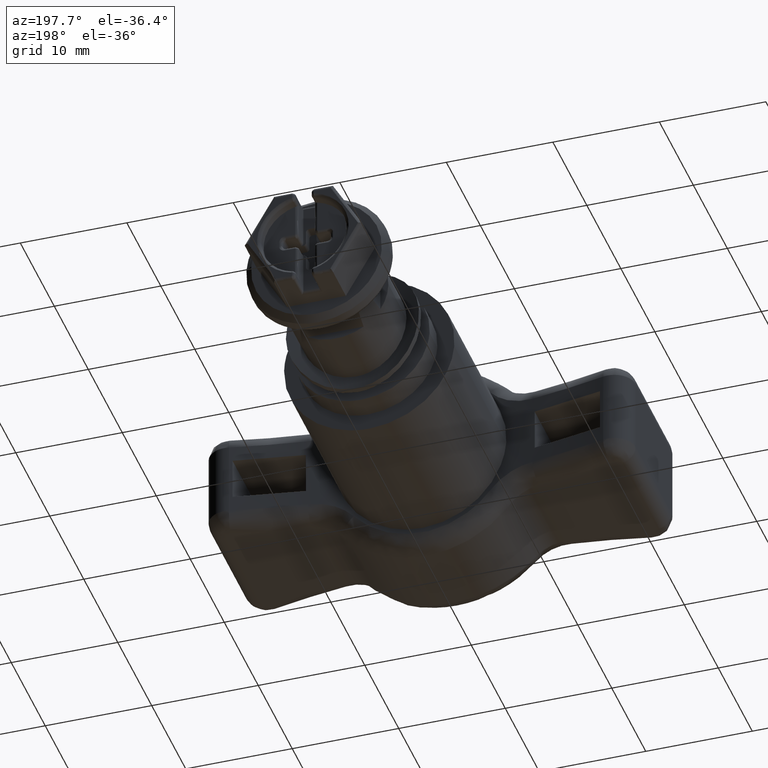
[diagram: clean part render]
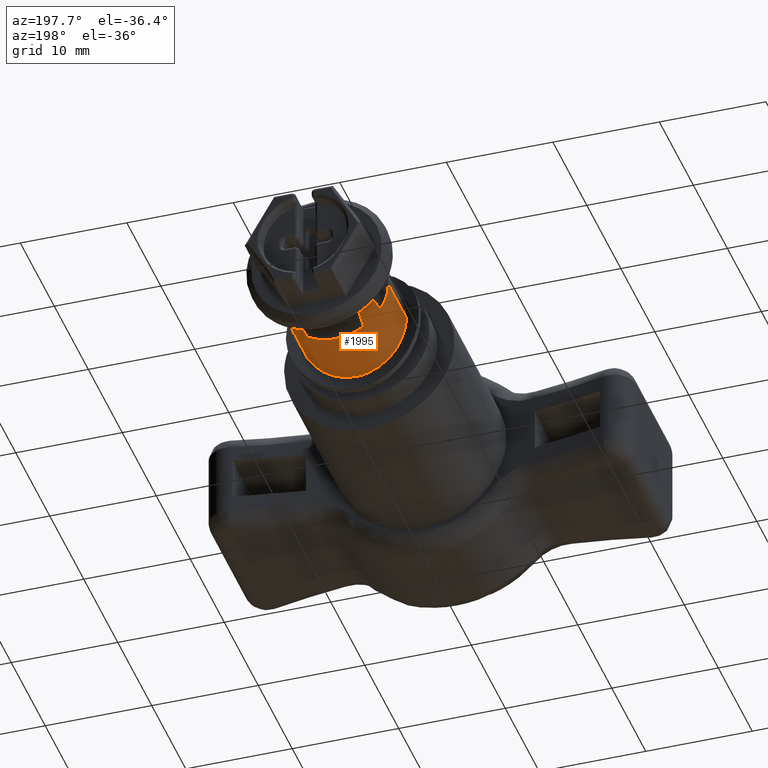
[diagram: same view with one face highlighted and labeled with its STEP entity id]
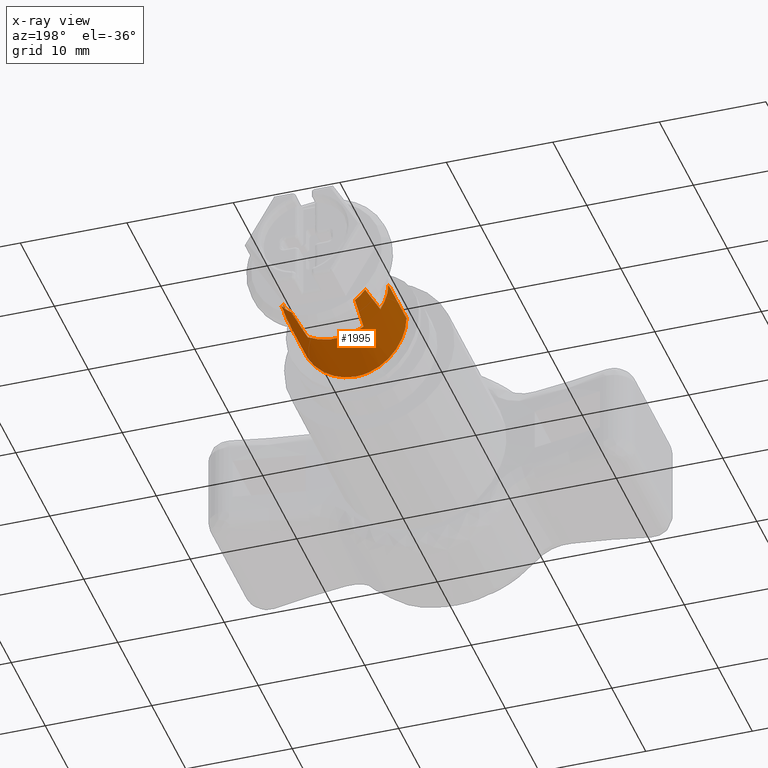
[diagram: x-ray of the same camera — body ghosted, the highlighted face saturated]
A machine part, auxiliary view. The second image highlights one B-rep face of the part: STEP entity #1995.
The next image is the same camera in x-ray: the body ghosted, the highlighted face saturated — about 0% of this face is hidden behind the body in this view.
In plain terms, the highlighted face is a freeform B-spline surface patch.
Its self-contained STEP definition (entity closure, byte-faithful):
#1743=CARTESIAN_POINT('',(4.949811754271095,3.657501100709614,0.043196352768667));
#1744=CARTESIAN_POINT('',(4.993008107039762,3.657501100709614,-4.906615401502429));
#1745=CARTESIAN_POINT('',(0.043196352768667,3.657501100709614,-4.949811754271095));
#1746=CARTESIAN_POINT('',(-4.906615401502429,3.657501100709614,-4.993008107039762));
#1747=CARTESIAN_POINT('',(-4.949811754271095,3.657501100709614,-0.043196352768667));
#1748=CARTESIAN_POINT('',(4.949811754271095,13.848563134596731,0.043196352768667));
#1749=CARTESIAN_POINT('',(4.993008107039762,13.848563134596731,-4.906615401502429));
#1750=CARTESIAN_POINT('',(0.043196352768667,13.848563134596731,-4.949811754271095));
#1751=CARTESIAN_POINT('',(-4.906615401502429,13.848563134596731,-4.993008107039762));
#1752=CARTESIAN_POINT('',(-4.949811754271095,13.848563134596731,-0.043196352768667));
#1760=(BOUNDED_SURFACE()B_SPLINE_SURFACE(2,1,((#1743,#1748),(#1744,#1749),(#1745,#1750),(#1746,#1751),(#1747,#1752)),.UNSPECIFIED.,.F.,.F.,.U.)B_SPLINE_SURFACE_WITH_KNOTS((3,2,3),(2,2),(0.0,8.201428924534259,16.402857849068521),(0.0,10.191062033887119),.UNSPECIFIED.)GEOMETRIC_REPRESENTATION_ITEM()RATIONAL_B_SPLINE_SURFACE(((1.0,1.0),(0.707106781186548,0.707106781186548),(1.0,1.0),(0.707106781186548,0.707106781186548),(1.0,1.0)))REPRESENTATION_ITEM('')SURFACE());
#1761=CARTESIAN_POINT('',(4.949811752622369,9.900000470229095,0.043196541692497));
#1762=VERTEX_POINT('',#1761);
#1763=CARTESIAN_POINT('',(4.200000199489295,9.900000470224770,-2.619637503912030));
#1764=VERTEX_POINT('',#1763);
#1765=CARTESIAN_POINT('',(4.949811752622369,9.900000470229095,0.043196541692497));
#1766=CARTESIAN_POINT('',(4.962383127710958,9.900000470224770,-1.397327758446695));
#1767=CARTESIAN_POINT('',(4.200000199489295,9.900000470224770,-2.619637503912030));
#1775=(BOUNDED_CURVE()B_SPLINE_CURVE(2,(#1765,#1766,#1767),.UNSPECIFIED.,.F.,.U.)B_SPLINE_CURVE_WITH_KNOTS((3,3),(0.492379668734911,1.0),.UNSPECIFIED.)CURVE()GEOMETRIC_REPRESENTATION_ITEM()RATIONAL_B_SPLINE_CURVE((0.924260021045028,0.923087828596199,1.0))REPRESENTATION_ITEM(''));
#1776=EDGE_CURVE('',#1762,#1764,#1775,.T.);
#1777=ORIENTED_EDGE('',*,*,#1776,.F.);
#1778=CARTESIAN_POINT('',(4.949812679903789,4.561491550848831,0.043196360768620));
#1779=VERTEX_POINT('',#1778);
#1780=CARTESIAN_POINT('',(4.949812679903789,4.561491550848831,0.043196360768620));
#1781=CARTESIAN_POINT('',(4.949811752622369,9.900000470229095,0.043196541692497));
#1782=QUASI_UNIFORM_CURVE('',1,(#1780,#1781),.UNSPECIFIED.,.F.,.U.);
#1783=EDGE_CURVE('',#1779,#1762,#1782,.T.);
#1784=ORIENTED_EDGE('',*,*,#1783,.F.);
#1785=CARTESIAN_POINT('',(-0.002106899889249,3.900001191639709,-4.949999952943595));
#1786=VERTEX_POINT('',#1785);
#1787=CARTESIAN_POINT('',(-0.002106899889249,3.900001191639709,-4.949999952943595));
#1788=CARTESIAN_POINT('',(0.159836791459824,3.899983106584857,-4.950068716000938));
#1789=CARTESIAN_POINT('',(0.321549631759985,3.902051623462572,-4.942209517530054));
#1790=CARTESIAN_POINT('',(0.644511325206006,3.910330217092251,-4.910543170824466));
#1791=CARTESIAN_POINT('',(0.805934232216225,3.916549369533924,-4.886702687357722));
#1792=CARTESIAN_POINT('',(1.288413030167790,3.941326866971410,-4.790621822478156));
#1793=CARTESIAN_POINT('',(1.598029711204480,3.965468704008409,-4.696067131034080));
#1794=CARTESIAN_POINT('',(2.045384671220852,4.010701004606911,-4.510539286683148));
#1795=CARTESIAN_POINT('',(2.191636736552876,4.027284976672309,-4.441357717144506));
#1796=CARTESIAN_POINT('',(2.406650809253257,4.054125816393944,-4.326331138180716));
#1797=CARTESIAN_POINT('',(2.477761834053888,4.063424411115696,-4.286001193504472));
#1798=CARTESIAN_POINT('',(2.617154362049209,4.082436836425926,-4.202334230189529));
#1799=CARTESIAN_POINT('',(2.685548714871608,4.092162631897287,-4.158948499518180));
#1800=CARTESIAN_POINT('',(3.021154904683739,4.141702311818814,-3.934397091448967));
#1801=CARTESIAN_POINT('',(3.269458772680993,4.184248404154034,-3.730594701390641));
#1802=CARTESIAN_POINT('',(3.554958930073130,4.238162947239802,-3.445472613575584));
#1803=CARTESIAN_POINT('',(3.610803217458734,4.248982121677257,-3.386915248266799));
#1804=CARTESIAN_POINT('',(3.719940678614736,4.270616777126216,-3.266670494821880));
#1805=CARTESIAN_POINT('',(3.773203098089304,4.281427676224735,-3.204996050001018));
#1806=CARTESIAN_POINT('',(3.927443559459737,4.313387412561175,-3.017271168494997));
#1807=CARTESIAN_POINT('',(4.023493759121891,4.334181571350769,-2.887878379027006));
#1808=CARTESIAN_POINT('',(4.291833793609067,4.394177039466904,-2.487173084482560));
#1809=CARTESIAN_POINT('',(4.444518456821213,4.431008888554121,-2.203462528696388));
#1810=CARTESIAN_POINT('',(4.601270004794536,4.470179657923537,-1.826874992819635));
#1811=CARTESIAN_POINT('',(4.630837082335916,4.477654027212187,-1.750562144057597));
#1812=CARTESIAN_POINT('',(4.685858455508082,4.491686542337921,-1.597451231896719));
#1813=CARTESIAN_POINT('',(4.711400828293182,4.498266638445246,-1.520447221217967));
#1814=CARTESIAN_POINT('',(4.782207617410449,4.516642026721550,-1.288104572830751));
#1815=CARTESIAN_POINT('',(4.861123251954687,4.537502148295919,-0.974771942442676));
#1816=CARTESIAN_POINT('',(4.909258555573484,4.550496239445836,-0.654365957748348));
#1817=CARTESIAN_POINT('',(4.933551490972372,4.557072379204759,-0.411339306007528));
#1818=CARTESIAN_POINT('',(4.939677455861680,4.558736158329343,-0.329875953300858));
#1819=CARTESIAN_POINT('',(4.947895442374732,4.560969672013772,-0.166018685218303));
#1820=CARTESIAN_POINT('',(4.949961121270930,4.561532215063449,-0.083958363934988));
#1821=CARTESIAN_POINT('',(4.950006858002320,4.561544662334078,0.012848806976919));
#1822=CARTESIAN_POINT('',(4.949944811716124,4.561527586066537,0.028027138857545));
#1823=CARTESIAN_POINT('',(4.949812679903789,4.561491550848831,0.043196360768620));
#1824=B_SPLINE_CURVE_WITH_KNOTS('',3,(#1787,#1788,#1789,#1790,#1791,#1792,#1793,#1794,#1795,#1796,#1797,#1798,#1799,#1800,#1801,#1802,#1803,#1804,#1805,#1806,#1807,#1808,#1809,#1810,#1811,#1812,#1813,#1814,#1815,#1816,#1817,#1818,#1819,#1820,#1821,#1822,#1823),.UNSPECIFIED.,.F.,.U.,(4,2,2,2,2,2,2,2,2,2,2,2,2,2,1,2,2,2,4),(0.500000000000001,0.515625000000001,0.531250000000001,0.562500000000001,0.578125000000001,0.585937500000001,0.593750000000000,0.625000000000000,0.632812500000000,0.640625000000000,0.656250000000000,0.687500000000000,0.695312500000000,0.703125000000000,0.718750000000000,0.734375000000000,0.742187500000000,0.750000000000000,0.751453716007712),.UNSPECIFIED.);
#1825=EDGE_CURVE('',#1786,#1779,#1824,.T.);
#1826=ORIENTED_EDGE('',*,*,#1825,.F.);
#1827=CARTESIAN_POINT('',(-4.949811995711610,4.561488388558884,-0.043195408050579));
#1828=VERTEX_POINT('',#1827);
#1829=CARTESIAN_POINT('',(-4.949811995711610,4.561488388558884,-0.043195408050579));
#1830=CARTESIAN_POINT('',(-4.948533073386311,4.561139646061286,-0.190052144919655));
#1831=CARTESIAN_POINT('',(-4.940722172687361,4.559011101286549,-0.337383272692361));
#1832=CARTESIAN_POINT('',(-4.910069987081322,4.550712326686144,-0.648587773702414));
#1833=CARTESIAN_POINT('',(-4.885985883354389,4.544209723189174,-0.809895723979469));
#1834=CARTESIAN_POINT('',(-4.790776378708419,4.518835786588152,-1.286902373887887));
#1835=CARTESIAN_POINT('',(-4.696871746714621,4.494083741062116,-1.596172407617766));
#1836=CARTESIAN_POINT('',(-4.541026552129538,4.455119020419421,-1.971850757990086));
#1837=CARTESIAN_POINT('',(-4.507816042733376,4.446900725118884,-2.046638809909340));
#1838=CARTESIAN_POINT('',(-4.438035067181209,4.429855610635938,-2.193850656880567));
#1839=CARTESIAN_POINT('',(-4.401472335712231,4.421030099250448,-2.266293504033980));
#1840=CARTESIAN_POINT('',(-4.286864857125941,4.393761064413623,-2.480215155713165));
#1841=CARTESIAN_POINT('',(-4.203913189976734,4.374525792612164,-2.618295450468087));
#1842=CARTESIAN_POINT('',(-4.025121190245118,4.334535524115902,-2.885612017972389));
#1843=CARTESIAN_POINT('',(-3.929280752750573,4.313779584061865,-3.014848081376595));
#1844=CARTESIAN_POINT('',(-3.775709004250434,4.281938706065553,-3.202036315671855));
#1845=CARTESIAN_POINT('',(-3.722880167007864,4.271207235750972,-3.263319359792655));
#1846=CARTESIAN_POINT('',(-3.613883055772584,4.249582034992030,-3.383628128004226));
#1847=CARTESIAN_POINT('',(-3.557690977327860,4.238685676482548,-3.442658152142073));
#1848=CARTESIAN_POINT('',(-3.271381191078361,4.184577276391516,-3.729008922381121));
#1849=CARTESIAN_POINT('',(-3.023072122803522,4.142027689213460,-3.932833645451834));
#1850=CARTESIAN_POINT('',(-2.621913096591788,4.082746673519988,-4.201664497785338));
#1851=CARTESIAN_POINT('',(-2.483375878543342,4.063740964288710,-4.285077064139112));
#1852=CARTESIAN_POINT('',(-2.268036050004757,4.036803013433937,-4.400585108179703));
#1853=CARTESIAN_POINT('',(-2.195097568958065,4.028101180763019,-4.437414325271353));
#1854=CARTESIAN_POINT('',(-2.048330412545986,4.011475824154257,-4.507043575755402));
#1855=CARTESIAN_POINT('',(-1.974308283798276,4.003527606402347,-4.539949848238186));
#1856=CARTESIAN_POINT('',(-1.601040065833292,3.965718296085525,-4.695076646340097));
#1857=CARTESIAN_POINT('',(-1.292410270482858,3.941647283564325,-4.789360785806943));
#1858=CARTESIAN_POINT('',(-0.893766496564610,3.921032256191492,-4.869321939776786));
#1859=CARTESIAN_POINT('',(-0.813389285382056,3.917383466274243,-4.883401979674098));
#1860=CARTESIAN_POINT('',(-0.651305845281762,3.911081614612867,-4.907648900924043));
#1861=CARTESIAN_POINT('',(-0.569841039141262,3.908440980043548,-4.917768059625481));
#1862=CARTESIAN_POINT('',(-0.326225125810560,3.902123857093752,-4.941934464979385));
#1863=CARTESIAN_POINT('',(-0.164050587424001,3.900019224742777,-4.949931189729648));
#1864=CARTESIAN_POINT('',(-0.002106899889249,3.900001191639709,-4.949999952943595));
#1865=B_SPLINE_CURVE_WITH_KNOTS('',3,(#1829,#1830,#1831,#1832,#1833,#1834,#1835,#1836,#1837,#1838,#1839,#1840,#1841,#1842,#1843,#1844,#1845,#1846,#1847,#1848,#1849,#1850,#1851,#1852,#1853,#1854,#1855,#1856,#1857,#1858,#1859,#1860,#1861,#1862,#1863,#1864),.UNSPECIFIED.,.F.,.U.,(4,2,2,2,2,2,2,2,2,2,2,2,2,2,2,2,2,4),(0.251488338932274,0.265625000000001,0.281250000000001,0.312500000000001,0.320312500000001,0.328125000000001,0.343750000000001,0.359375000000001,0.367187500000001,0.375000000000001,0.406250000000001,0.421875000000001,0.429687500000001,0.437500000000001,0.468750000000001,0.476562500000001,0.484375000000001,0.500000000000001),.UNSPECIFIED.);
#1866=EDGE_CURVE('',#1828,#1786,#1865,.T.);
#1867=ORIENTED_EDGE('',*,*,#1866,.F.);
#1868=CARTESIAN_POINT('',(-4.949811754381668,9.900000470225866,-0.043196340097626));
#1869=VERTEX_POINT('',#1868);
#1870=CARTESIAN_POINT('',(-4.949811995711610,4.561488388558884,-0.043195408050579));
#1871=CARTESIAN_POINT('',(-4.949811754381668,9.900000470225866,-0.043196340097626));
#1872=QUASI_UNIFORM_CURVE('',1,(#1870,#1871),.UNSPECIFIED.,.F.,.U.);
#1873=EDGE_CURVE('',#1828,#1869,#1872,.T.);
#1874=ORIENTED_EDGE('',*,*,#1873,.T.);
#1875=CARTESIAN_POINT('',(-4.200000199489295,9.900000470224770,-2.619637503912030));
#1876=VERTEX_POINT('',#1875);
#1877=CARTESIAN_POINT('',(-4.200000199489295,9.900000470224770,-2.619637503912030));
#1878=CARTESIAN_POINT('',(-4.937648357341070,9.900000470224770,-1.436984405724307));
#1879=CARTESIAN_POINT('',(-4.949811754381668,9.900000470225866,-0.043196340097626));
#1887=(BOUNDED_CURVE()B_SPLINE_CURVE(2,(#1877,#1878,#1879),.UNSPECIFIED.,.F.,.U.)B_SPLINE_CURVE_WITH_KNOTS((3,3),(0.0,0.492379739864285),.UNSPECIFIED.)CURVE()GEOMETRIC_REPRESENTATION_ITEM()RATIONAL_B_SPLINE_CURVE((1.0,0.925397009111473,0.924260020716527))REPRESENTATION_ITEM(''));
#1888=EDGE_CURVE('',#1876,#1869,#1887,.T.);
#1889=ORIENTED_EDGE('',*,*,#1888,.F.);
#1890=CARTESIAN_POINT('',(-3.950000187615005,13.600000645965340,-2.983286919733710));
#1891=VERTEX_POINT('',#1890);
#1892=CARTESIAN_POINT('',(-3.950000187615003,13.600000645965350,-2.983286919733711));
#1893=CARTESIAN_POINT('',(-4.083113131671557,11.629929073927782,-2.807039656850827));
#1894=CARTESIAN_POINT('',(-4.200000199489295,9.900000470224770,-2.619637503912030));
#1902=(BOUNDED_CURVE()B_SPLINE_CURVE(2,(#1892,#1893,#1894),.UNSPECIFIED.,.F.,.U.)CURVE()GEOMETRIC_REPRESENTATION_ITEM()QUASI_UNIFORM_CURVE()RATIONAL_B_SPLINE_CURVE((1.0,0.999006031443943,1.0))REPRESENTATION_ITEM(''));
#1903=EDGE_CURVE('',#1891,#1876,#1902,.T.);
#1904=ORIENTED_EDGE('',*,*,#1903,.F.);
#1905=CARTESIAN_POINT('',(-2.983286919733710,13.600000645965340,-3.950000187615005));
#1906=VERTEX_POINT('',#1905);
#1907=CARTESIAN_POINT('',(-2.983286919733708,13.600000645965340,-3.950000187615006));
#1908=CARTESIAN_POINT('',(-3.534038320963541,13.600000645965340,-3.534038320963541));
#1909=CARTESIAN_POINT('',(-3.950000187615004,13.600000645965340,-2.983286919733712));
#1917=(BOUNDED_CURVE()B_SPLINE_CURVE(2,(#1907,#1908,#1909),.UNSPECIFIED.,.F.,.U.)CURVE()GEOMETRIC_REPRESENTATION_ITEM()QUASI_UNIFORM_CURVE()RATIONAL_B_SPLINE_CURVE((1.0,0.990419009426212,1.0))REPRESENTATION_ITEM(''));
#1918=EDGE_CURVE('',#1906,#1891,#1917,.T.);
#1919=ORIENTED_EDGE('',*,*,#1918,.F.);
#1920=CARTESIAN_POINT('',(-2.619637503912030,9.900000470224770,-4.200000199489295));
#1921=VERTEX_POINT('',#1920);
#1922=CARTESIAN_POINT('',(-2.619637503912030,9.900000470224770,-4.200000199489295));
#1923=CARTESIAN_POINT('',(-2.807039656850808,11.629929073927562,-4.083113131671572));
#1924=CARTESIAN_POINT('',(-2.983286919733708,13.600000645965320,-3.950000187615005));
#1932=(BOUNDED_CURVE()B_SPLINE_CURVE(2,(#1922,#1923,#1924),.UNSPECIFIED.,.F.,.U.)CURVE()GEOMETRIC_REPRESENTATION_ITEM()QUASI_UNIFORM_CURVE()RATIONAL_B_SPLINE_CURVE((1.0,0.999006031443888,1.0))REPRESENTATION_ITEM(''));
#1933=EDGE_CURVE('',#1921,#1906,#1932,.T.);
#1934=ORIENTED_EDGE('',*,*,#1933,.F.);
#1935=CARTESIAN_POINT('',(2.619637503912030,9.900000470224770,-4.200000199489295));
#1936=VERTEX_POINT('',#1935);
#1937=CARTESIAN_POINT('',(2.619637503912030,9.900000470224770,-4.200000199489295));
#1938=CARTESIAN_POINT('',(8.673617E-016,9.900000470224770,-5.833928848525320));
#1939=CARTESIAN_POINT('',(-2.619637503912030,9.900000470224770,-4.200000199489295));
#1947=(BOUNDED_CURVE()B_SPLINE_CURVE(2,(#1937,#1938,#1939),.UNSPECIFIED.,.F.,.U.)CURVE()GEOMETRIC_REPRESENTATION_ITEM()QUASI_UNIFORM_CURVE()RATIONAL_B_SPLINE_CURVE((1.0,0.848484848484850,1.0))REPRESENTATION_ITEM(''));
#1948=EDGE_CURVE('',#1936,#1921,#1947,.T.);
#1949=ORIENTED_EDGE('',*,*,#1948,.F.);
#1950=CARTESIAN_POINT('',(2.983286919733710,13.600000645965340,-3.950000187615005));
#1951=VERTEX_POINT('',#1950);
#1952=CARTESIAN_POINT('',(2.983286919733711,13.600000645965350,-3.950000187615003));
#1953=CARTESIAN_POINT('',(2.807039656850827,11.629929073927782,-4.083113131671557));
#1954=CARTESIAN_POINT('',(2.619637503912030,9.900000470224770,-4.200000199489295));
#1962=(BOUNDED_CURVE()B_SPLINE_CURVE(2,(#1952,#1953,#1954),.UNSPECIFIED.,.F.,.U.)CURVE()GEOMETRIC_REPRESENTATION_ITEM()QUASI_UNIFORM_CURVE()RATIONAL_B_SPLINE_CURVE((1.0,0.999006031443943,1.0))REPRESENTATION_ITEM(''));
#1963=EDGE_CURVE('',#1951,#1936,#1962,.T.);
#1964=ORIENTED_EDGE('',*,*,#1963,.F.);
#1965=CARTESIAN_POINT('',(3.950000187615005,13.600000645965340,-2.983286919733705));
#1966=VERTEX_POINT('',#1965);
#1967=CARTESIAN_POINT('',(3.950000187615007,13.600000645965340,-2.983286919733707));
#1968=CARTESIAN_POINT('',(3.534038320963542,13.600000645965341,-3.534038320963541));
#1969=CARTESIAN_POINT('',(2.983286919733709,13.600000645965340,-3.950000187615006));
#1977=(BOUNDED_CURVE()B_SPLINE_CURVE(2,(#1967,#1968,#1969),.UNSPECIFIED.,.F.,.U.)CURVE()GEOMETRIC_REPRESENTATION_ITEM()QUASI_UNIFORM_CURVE()RATIONAL_B_SPLINE_CURVE((1.0,0.990419009426212,1.0))REPRESENTATION_ITEM(''));
#1978=EDGE_CURVE('',#1966,#1951,#1977,.T.);
#1979=ORIENTED_EDGE('',*,*,#1978,.F.);
#1980=CARTESIAN_POINT('',(4.200000199489295,9.900000470224770,-2.619637503912030));
#1981=CARTESIAN_POINT('',(4.083113131671575,11.629929073927526,-2.807039656850804));
#1982=CARTESIAN_POINT('',(3.950000187615005,13.600000645965340,-2.983286919733705));
#1990=(BOUNDED_CURVE()B_SPLINE_CURVE(2,(#1980,#1981,#1982),.UNSPECIFIED.,.F.,.U.)CURVE()GEOMETRIC_REPRESENTATION_ITEM()QUASI_UNIFORM_CURVE()RATIONAL_B_SPLINE_CURVE((1.0,0.999006031444001,1.0))REPRESENTATION_ITEM(''));
#1991=EDGE_CURVE('',#1764,#1966,#1990,.T.);
#1992=ORIENTED_EDGE('',*,*,#1991,.F.);
#1993=EDGE_LOOP('',(#1777,#1784,#1826,#1867,#1874,#1889,#1904,#1919,#1934,#1949,#1964,#1979,#1992));
#1994=FACE_OUTER_BOUND('',#1993,.T.);
#1995=ADVANCED_FACE('',(#1994),#1760,.T.);